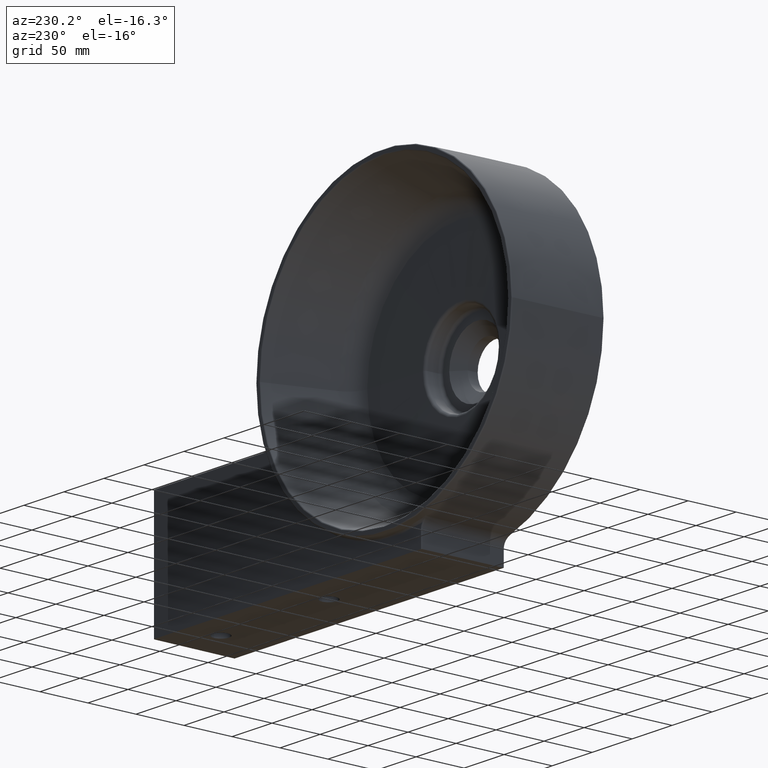
[diagram: clean part render]
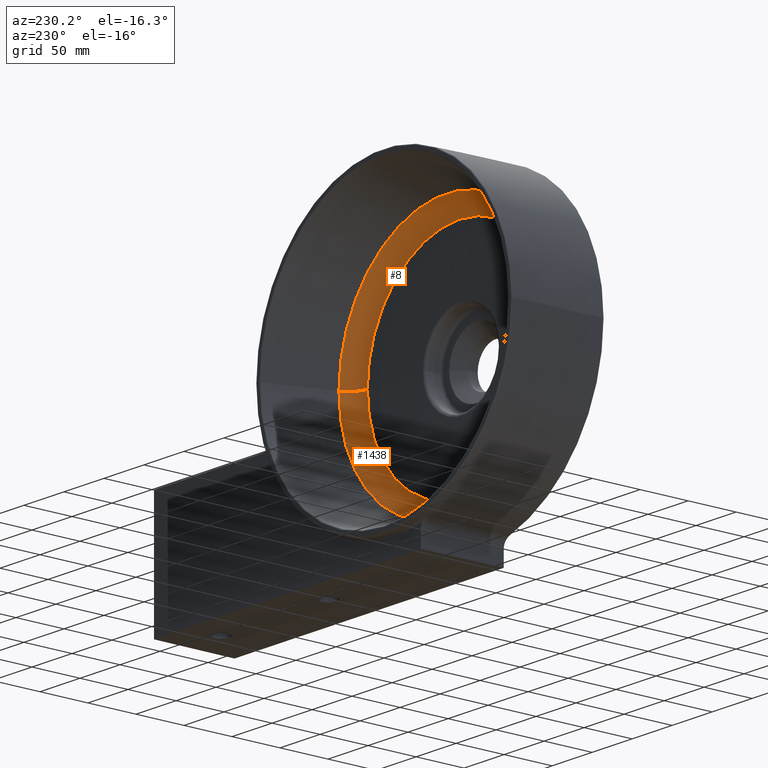
[diagram: same view with one multi-face feature highlighted, each face labeled with its STEP entity id]
A machine part, auxiliary view. The highlighted faces form ONE feature: a constant-radius fillet chain: 2 tangent blend faces with common blend radius 20 mm. The faces share edges in the B-rep.
Their STEP definitions:
[1] entity #8 (Torus):
#8 = ADVANCED_FACE ( 'NONE', ( #285 ), #1665, .F. ) ;
#85 = CIRCLE ( 'NONE', #2321, 134.4338916994192061 ) ;
#160 = AXIS2_PLACEMENT_3D ( 'NONE', #1888, #3513, #2822 ) ;
#194 = ORIENTED_EDGE ( 'NONE', *, *, #239, .T. ) ;
#239 = EDGE_CURVE ( 'NONE', #1797, #500, #85, .T. ) ;
#285 = FACE_OUTER_BOUND ( 'NONE', #1846, .T. ) ;
#294 = EDGE_CURVE ( 'NONE', #2341, #2229, #3728, .T. ) ;
#500 = VERTEX_POINT ( 'NONE', #3374 ) ;
#647 = CARTESIAN_POINT ( 'NONE',  ( 7.986351613643838256E-15, 51.59946533649621614, 0.0000000000000000000 ) ) ;
#689 = EDGE_CURVE ( 'NONE', #2229, #500, #3666, .T. ) ;
#922 = DIRECTION ( 'NONE',  ( 0.0000000000000000000, -0.0000000000000000000, -1.000000000000000000 ) ) ;
#999 = AXIS2_PLACEMENT_3D ( 'NONE', #1013, #2274, #1967 ) ;
#1013 = CARTESIAN_POINT ( 'NONE',  ( 9.684624439845843926E-15, 37.61758012698156506, 0.0000000000000000000 ) ) ;
#1537 = DIRECTION ( 'NONE',  ( -1.214623636765614367E-16, 1.000000000000000000, -0.0000000000000000000 ) ) ;
#1590 = DIRECTION ( 'NONE',  ( -1.000000000000000000, -1.032313178795999416E-16, 0.0000000000000000000 ) ) ;
#1665 = TOROIDAL_SURFACE ( 'NONE', #1926, 115.3595526844546981, 20.00000000000001066 ) ;
#1734 = CARTESIAN_POINT ( 'NONE',  ( 115.7594727084467081, 37.61758012698157927, 1.531992514450001495E-14 ) ) ;
#1797 = VERTEX_POINT ( 'NONE', #3474 ) ;
#1846 = EDGE_LOOP ( 'NONE', ( #1990, #3067, #2921, #194 ) ) ;
#1888 = CARTESIAN_POINT ( 'NONE',  ( 115.3595526844547123, 57.61358132658173048, 1.412747069460879032E-14 ) ) ;
#1909 = DIRECTION ( 'NONE',  ( -1.214623636765614367E-16, 1.000000000000000000, -0.0000000000000000000 ) ) ;
#1926 = AXIS2_PLACEMENT_3D ( 'NONE', #2449, #1537, #3975 ) ;
#1967 = DIRECTION ( 'NONE',  ( -1.000000000000000000, -1.198846840186222324E-16, 0.0000000000000000000 ) ) ;
#1990 = ORIENTED_EDGE ( 'NONE', *, *, #689, .F. ) ;
#2052 = CARTESIAN_POINT ( 'NONE',  ( -115.7594727084466797, 37.61758012698155085, 0.0000000000000000000 ) ) ;
#2208 = CIRCLE ( 'NONE', #2996, 20.00000000000000355 ) ;
#2229 = VERTEX_POINT ( 'NONE', #1734 ) ;
#2274 = DIRECTION ( 'NONE',  ( -1.214623636765614367E-16, 1.000000000000000000, -0.0000000000000000000 ) ) ;
#2321 = AXIS2_PLACEMENT_3D ( 'NONE', #647, #1909, #1590 ) ;
#2341 = VERTEX_POINT ( 'NONE', #2052 ) ;
#2449 = CARTESIAN_POINT ( 'NONE',  ( 1.387778780781445676E-14, 57.61358132658171627, 0.0000000000000000000 ) ) ;
#2822 = DIRECTION ( 'NONE',  ( 1.000000000000000000, 0.0000000000000000000, 1.224646799147353454E-16 ) ) ;
#2921 = ORIENTED_EDGE ( 'NONE', *, *, #3445, .T. ) ;
#2996 = AXIS2_PLACEMENT_3D ( 'NONE', #3769, #922, #3443 ) ;
#3067 = ORIENTED_EDGE ( 'NONE', *, *, #294, .F. ) ;
#3374 = CARTESIAN_POINT ( 'NONE',  ( 134.4338916994192061, 51.59946533649623035, 1.770868383702169800E-14 ) ) ;
#3443 = DIRECTION ( 'NONE',  ( -1.000000000000000000, 0.0000000000000000000, 0.0000000000000000000 ) ) ;
#3445 = EDGE_CURVE ( 'NONE', #2341, #1797, #2208, .T. ) ;
#3474 = CARTESIAN_POINT ( 'NONE',  ( -134.4338916994192061, 51.59946533649620193, 0.0000000000000000000 ) ) ;
#3513 = DIRECTION ( 'NONE',  ( -1.224646799147353207E-16, -1.487484948933726914E-32, 1.000000000000000000 ) ) ;
#3666 = CIRCLE ( 'NONE', #160, 20.00000000000000355 ) ;
#3728 = CIRCLE ( 'NONE', #999, 115.7594727084466939 ) ;
#3769 = CARTESIAN_POINT ( 'NONE',  ( -115.3595526844546839, 57.61358132658170206, 0.0000000000000000000 ) ) ;
#3975 = DIRECTION ( 'NONE',  ( -1.000000000000000000, -1.214623636765614367E-16, 0.0000000000000000000 ) ) ;
[2] entity #1438 (Torus):
#160 = AXIS2_PLACEMENT_3D ( 'NONE', #1888, #3513, #2822 ) ;
#171 = EDGE_CURVE ( 'NONE', #2229, #2341, #1270, .T. ) ;
#417 = DIRECTION ( 'NONE',  ( -1.214623636765614367E-16, 1.000000000000000000, -0.0000000000000000000 ) ) ;
#436 = ORIENTED_EDGE ( 'NONE', *, *, #689, .T. ) ;
#500 = VERTEX_POINT ( 'NONE', #3374 ) ;
#624 = ORIENTED_EDGE ( 'NONE', *, *, #840, .T. ) ;
#689 = EDGE_CURVE ( 'NONE', #2229, #500, #3666, .T. ) ;
#818 = DIRECTION ( 'NONE',  ( -1.000000000000000000, -1.198846840186222324E-16, 0.0000000000000000000 ) ) ;
#840 = EDGE_CURVE ( 'NONE', #500, #1797, #2799, .T. ) ;
#922 = DIRECTION ( 'NONE',  ( 0.0000000000000000000, -0.0000000000000000000, -1.000000000000000000 ) ) ;
#944 = AXIS2_PLACEMENT_3D ( 'NONE', #3922, #417, #2931 ) ;
#1270 = CIRCLE ( 'NONE', #3858, 115.7594727084466939 ) ;
#1438 = ADVANCED_FACE ( 'NONE', ( #1982 ), #2331, .F. ) ;
#1448 = CARTESIAN_POINT ( 'NONE',  ( 9.684624439845843926E-15, 37.61758012698156506, 0.0000000000000000000 ) ) ;
#1453 = EDGE_LOOP ( 'NONE', ( #2313, #436, #624, #2319 ) ) ;
#1483 = DIRECTION ( 'NONE',  ( -1.000000000000000000, -1.032313178795999416E-16, 0.0000000000000000000 ) ) ;
#1734 = CARTESIAN_POINT ( 'NONE',  ( 115.7594727084467081, 37.61758012698157927, 1.531992514450001495E-14 ) ) ;
#1797 = VERTEX_POINT ( 'NONE', #3474 ) ;
#1888 = CARTESIAN_POINT ( 'NONE',  ( 115.3595526844547123, 57.61358132658173048, 1.412747069460879032E-14 ) ) ;
#1982 = FACE_OUTER_BOUND ( 'NONE', #1453, .T. ) ;
#2052 = CARTESIAN_POINT ( 'NONE',  ( -115.7594727084466797, 37.61758012698155085, 0.0000000000000000000 ) ) ;
#2208 = CIRCLE ( 'NONE', #2996, 20.00000000000000355 ) ;
#2229 = VERTEX_POINT ( 'NONE', #1734 ) ;
#2313 = ORIENTED_EDGE ( 'NONE', *, *, #171, .F. ) ;
#2319 = ORIENTED_EDGE ( 'NONE', *, *, #3445, .F. ) ;
#2331 = TOROIDAL_SURFACE ( 'NONE', #944, 115.3595526844546981, 20.00000000000001066 ) ;
#2341 = VERTEX_POINT ( 'NONE', #2052 ) ;
#2712 = CARTESIAN_POINT ( 'NONE',  ( 7.986351613643838256E-15, 51.59946533649621614, 0.0000000000000000000 ) ) ;
#2799 = CIRCLE ( 'NONE', #2986, 134.4338916994192061 ) ;
#2822 = DIRECTION ( 'NONE',  ( 1.000000000000000000, 0.0000000000000000000, 1.224646799147353454E-16 ) ) ;
#2931 = DIRECTION ( 'NONE',  ( -1.000000000000000000, -1.214623636765614367E-16, 0.0000000000000000000 ) ) ;
#2986 = AXIS2_PLACEMENT_3D ( 'NONE', #2712, #3415, #1483 ) ;
#2996 = AXIS2_PLACEMENT_3D ( 'NONE', #3769, #922, #3443 ) ;
#3374 = CARTESIAN_POINT ( 'NONE',  ( 134.4338916994192061, 51.59946533649623035, 1.770868383702169800E-14 ) ) ;
#3415 = DIRECTION ( 'NONE',  ( -1.214623636765614367E-16, 1.000000000000000000, -0.0000000000000000000 ) ) ;
#3443 = DIRECTION ( 'NONE',  ( -1.000000000000000000, 0.0000000000000000000, 0.0000000000000000000 ) ) ;
#3445 = EDGE_CURVE ( 'NONE', #2341, #1797, #2208, .T. ) ;
#3474 = CARTESIAN_POINT ( 'NONE',  ( -134.4338916994192061, 51.59946533649620193, 0.0000000000000000000 ) ) ;
#3513 = DIRECTION ( 'NONE',  ( -1.224646799147353207E-16, -1.487484948933726914E-32, 1.000000000000000000 ) ) ;
#3666 = CIRCLE ( 'NONE', #160, 20.00000000000000355 ) ;
#3683 = DIRECTION ( 'NONE',  ( -1.214623636765614367E-16, 1.000000000000000000, -0.0000000000000000000 ) ) ;
#3769 = CARTESIAN_POINT ( 'NONE',  ( -115.3595526844546839, 57.61358132658170206, 0.0000000000000000000 ) ) ;
#3858 = AXIS2_PLACEMENT_3D ( 'NONE', #1448, #3683, #818 ) ;
#3922 = CARTESIAN_POINT ( 'NONE',  ( 1.387778780781445676E-14, 57.61358132658171627, 0.0000000000000000000 ) ) ;